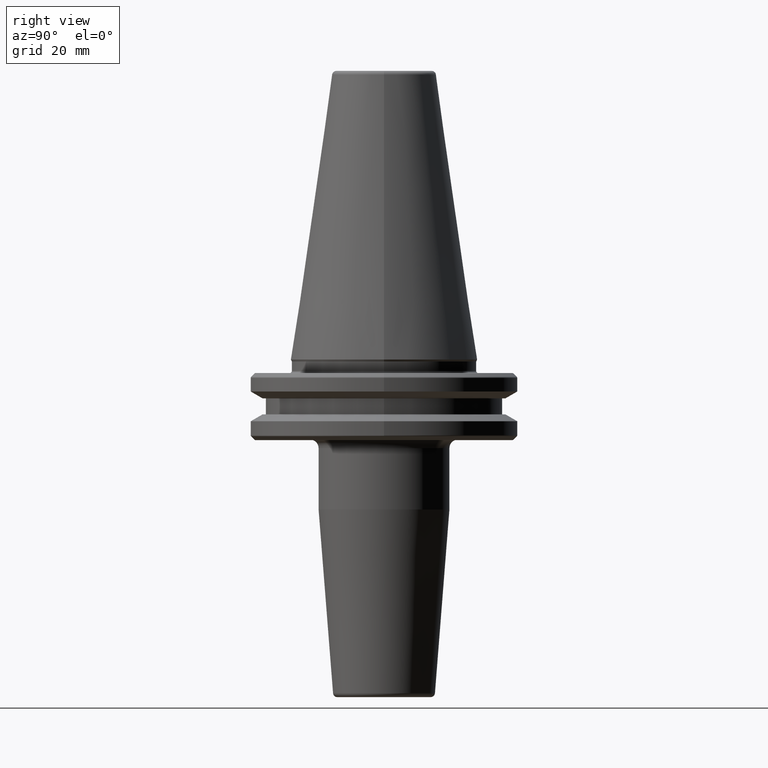
[diagram: clean part render]
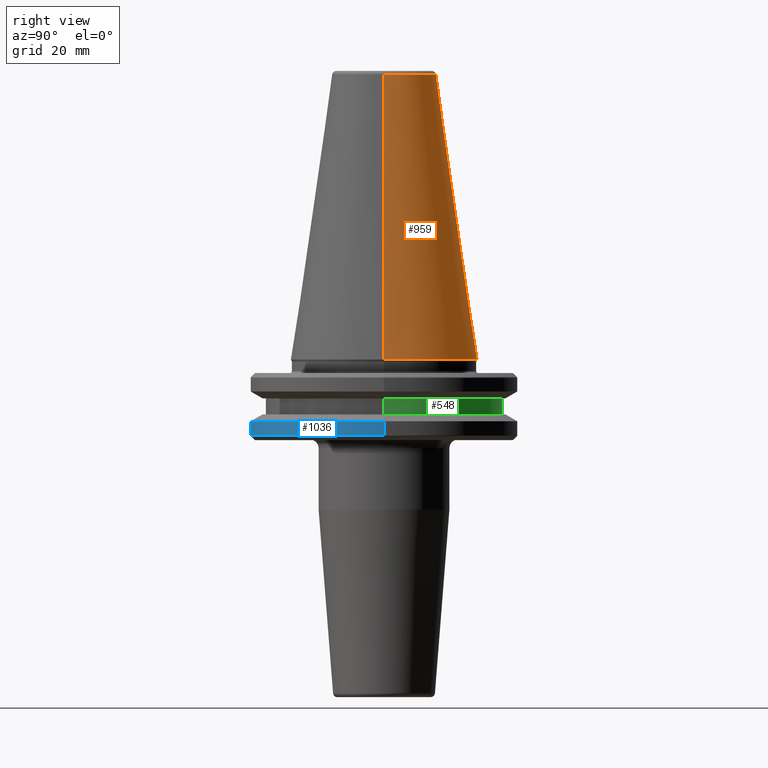
[diagram: same view with three faces highlighted in distinct colors, each labeled with its STEP entity id]
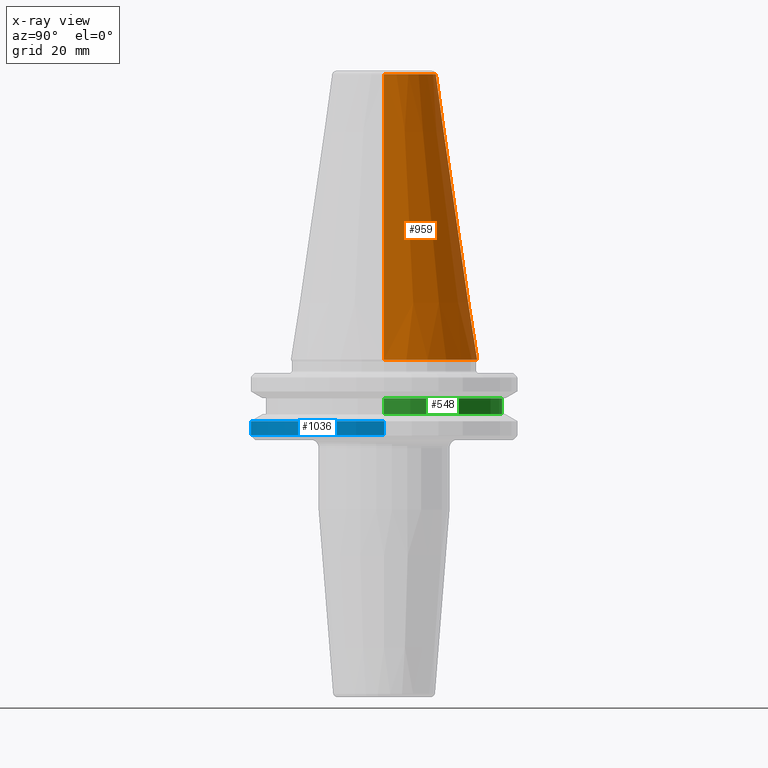
[diagram: x-ray of the same camera — body ghosted, the three highlighted faces saturated]
A machine part, right view with three faces highlighted in distinct colors.
The next image is the same camera in x-ray (body ghosted, the three faces saturated) — at least one of them is partly hidden behind the body in this view.
Their STEP definitions:

[orange] entity #959 — the highlighted conical surface has half-angle 8.297 deg.
#44 = CARTESIAN_POINT ( 'NONE',  ( 0.0000000000000000000, 0.0000000000000000000, 67.54430822726729400 ) ) ;
#144 = DIRECTION ( 'NONE',  ( 1.000000000000000000, 0.0000000000000000000, 0.0000000000000000000 ) ) ;
#147 = DIRECTION ( 'NONE',  ( -0.0000000000000000000, -0.0000000000000000000, 1.000000000000000000 ) ) ;
#156 = ORIENTED_EDGE ( 'NONE', *, *, #756, .T. ) ;
#178 = FACE_OUTER_BOUND ( 'NONE', #567, .T. ) ;
#188 = AXIS2_PLACEMENT_3D ( 'NONE', #1124, #147, #610 ) ;
#273 = VERTEX_POINT ( 'NONE', #507 ) ;
#288 = DIRECTION ( 'NONE',  ( 0.0000000000000000000, 0.0000000000000000000, -1.000000000000000000 ) ) ;
#397 = CARTESIAN_POINT ( 'NONE',  ( 0.0000000000000000000, 0.0000000000000000000, 67.54430822726729400 ) ) ;
#427 = CIRCLE ( 'NONE', #188, 22.22500000000000500 ) ;
#446 = AXIS2_PLACEMENT_3D ( 'NONE', #397, #288, #495 ) ;
#464 = LINE ( 'NONE', #1246, #1199 ) ;
#495 = DIRECTION ( 'NONE',  ( -1.000000000000000000, 0.0000000000000000000, 0.0000000000000000000 ) ) ;
#501 = AXIS2_PLACEMENT_3D ( 'NONE', #44, #732, #144 ) ;
#507 = CARTESIAN_POINT ( 'NONE',  ( -22.22500000000000500, 2.721777511104993200E-015, 0.0000000000000000000 ) ) ;
#543 = CONICAL_SURFACE ( 'NONE', #446, 12.37469537611110800, 0.1448138465474191100 ) ;
#567 = EDGE_LOOP ( 'NONE', ( #826, #1031, #156, #914 ) ) ;
#586 = VECTOR ( 'NONE', #1049, 1000.000000000000000 ) ;
#610 = DIRECTION ( 'NONE',  ( 1.000000000000000000, 0.0000000000000000000, 0.0000000000000000000 ) ) ;
#671 = CARTESIAN_POINT ( 'NONE',  ( 22.22500000000000500, 0.0000000000000000000, 0.0000000000000000000 ) ) ;
#672 = CARTESIAN_POINT ( 'NONE',  ( -12.37469537611110800, 0.0000000000000000000, 67.54430822726729400 ) ) ;
#708 = EDGE_CURVE ( 'NONE', #1232, #818, #464, .T. ) ;
#732 = DIRECTION ( 'NONE',  ( -0.0000000000000000000, -0.0000000000000000000, 1.000000000000000000 ) ) ;
#756 = EDGE_CURVE ( 'NONE', #818, #273, #427, .T. ) ;
#783 = CARTESIAN_POINT ( 'NONE',  ( 12.37469537611110800, 2.118620309691397700E-015, 67.54430822726729400 ) ) ;
#788 = EDGE_CURVE ( 'NONE', #1139, #273, #1101, .T. ) ;
#818 = VERTEX_POINT ( 'NONE', #671 ) ;
#826 = ORIENTED_EDGE ( 'NONE', *, *, #1053, .F. ) ;
#914 = ORIENTED_EDGE ( 'NONE', *, *, #788, .F. ) ;
#959 = ADVANCED_FACE ( 'NONE', ( #178 ), #543, .T. ) ;
#1031 = ORIENTED_EDGE ( 'NONE', *, *, #708, .T. ) ;
#1044 = DIRECTION ( 'NONE',  ( 0.1443082272673071000, 1.767266086135364600E-017, -0.9895327864921743500 ) ) ;
#1049 = DIRECTION ( 'NONE',  ( -0.1443082272673071000, 0.0000000000000000000, -0.9895327864921743500 ) ) ;
#1053 = EDGE_CURVE ( 'NONE', #1232, #1139, #1255, .T. ) ;
#1101 = LINE ( 'NONE', #1155, #586 ) ;
#1124 = CARTESIAN_POINT ( 'NONE',  ( 0.0000000000000000000, 0.0000000000000000000, 0.0000000000000000000 ) ) ;
#1139 = VERTEX_POINT ( 'NONE', #672 ) ;
#1155 = CARTESIAN_POINT ( 'NONE',  ( -12.37469537611110800, 0.0000000000000000000, 67.54430822726729400 ) ) ;
#1199 = VECTOR ( 'NONE', #1044, 1000.000000000000000 ) ;
#1232 = VERTEX_POINT ( 'NONE', #783 ) ;
#1246 = CARTESIAN_POINT ( 'NONE',  ( 12.37469537611110800, 1.515463108277802100E-015, 67.54430822726729400 ) ) ;
#1255 = CIRCLE ( 'NONE', #501, 12.37469537611110800 ) ;

[blue] entity #1036 — the highlighted cylindrical surface (partial cylindrical patch) has radius 31.75 mm, axis along (-0, -0, 1).
#15 = AXIS2_PLACEMENT_3D ( 'NONE', #760, #185, #862 ) ;
#25 = DIRECTION ( 'NONE',  ( 1.000000000000000000, 0.0000000000000000000, 0.0000000000000000000 ) ) ;
#31 = CIRCLE ( 'NONE', #15, 31.75000000000000000 ) ;
#35 = ORIENTED_EDGE ( 'NONE', *, *, #745, .T. ) ;
#185 = DIRECTION ( 'NONE',  ( -0.0000000000000000000, -0.0000000000000000000, 1.000000000000000000 ) ) ;
#213 = DIRECTION ( 'NONE',  ( 1.000000000000000000, 0.0000000000000000000, 0.0000000000000000000 ) ) ;
#269 = AXIS2_PLACEMENT_3D ( 'NONE', #613, #713, #213 ) ;
#280 = CARTESIAN_POINT ( 'NONE',  ( 31.75000000000000000, 0.0000000000000000000, 113.5216080541959500 ) ) ;
#389 = CIRCLE ( 'NONE', #269, 31.75000000000000000 ) ;
#390 = VECTOR ( 'NONE', #677, 1000.000000000000000 ) ;
#428 = LINE ( 'NONE', #280, #390 ) ;
#468 = VERTEX_POINT ( 'NONE', #1214 ) ;
#515 = LINE ( 'NONE', #822, #712 ) ;
#523 = DIRECTION ( 'NONE',  ( -0.0000000000000000000, -0.0000000000000000000, 1.000000000000000000 ) ) ;
#613 = CARTESIAN_POINT ( 'NONE',  ( 0.0000000000000000000, 0.0000000000000000000, -17.93431457505076300 ) ) ;
#677 = DIRECTION ( 'NONE',  ( -0.0000000000000000000, -0.0000000000000000000, 1.000000000000000000 ) ) ;
#698 = ORIENTED_EDGE ( 'NONE', *, *, #1159, .T. ) ;
#712 = VECTOR ( 'NONE', #1221, 1000.000000000000000 ) ;
#713 = DIRECTION ( 'NONE',  ( -0.0000000000000000000, -0.0000000000000000000, 1.000000000000000000 ) ) ;
#745 = EDGE_CURVE ( 'NONE', #754, #898, #389, .T. ) ;
#754 = VERTEX_POINT ( 'NONE', #1072 ) ;
#760 = CARTESIAN_POINT ( 'NONE',  ( 0.0000000000000000000, 0.0000000000000000000, -14.62183664205671200 ) ) ;
#764 = FACE_OUTER_BOUND ( 'NONE', #976, .T. ) ;
#800 = VERTEX_POINT ( 'NONE', #1074 ) ;
#814 = CARTESIAN_POINT ( 'NONE',  ( 0.0000000000000000000, 0.0000000000000000000, 113.5216080541959500 ) ) ;
#822 = CARTESIAN_POINT ( 'NONE',  ( -31.75000000000000000, 3.888253587292846500E-015, 113.5216080541959500 ) ) ;
#836 = EDGE_CURVE ( 'NONE', #800, #468, #31, .T. ) ;
#862 = DIRECTION ( 'NONE',  ( 1.000000000000000000, 0.0000000000000000000, 0.0000000000000000000 ) ) ;
#885 = AXIS2_PLACEMENT_3D ( 'NONE', #814, #523, #25 ) ;
#898 = VERTEX_POINT ( 'NONE', #1252 ) ;
#971 = ORIENTED_EDGE ( 'NONE', *, *, #836, .F. ) ;
#976 = EDGE_LOOP ( 'NONE', ( #1144, #35, #698, #971 ) ) ;
#1013 = CYLINDRICAL_SURFACE ( 'NONE', #885, 31.75000000000000000 ) ;
#1036 = ADVANCED_FACE ( 'NONE', ( #764 ), #1013, .T. ) ;
#1072 = CARTESIAN_POINT ( 'NONE',  ( -31.75000000000000000, 3.888253587292846500E-015, -17.93431457505076300 ) ) ;
#1074 = CARTESIAN_POINT ( 'NONE',  ( -31.75000000000000000, 3.888253587292846500E-015, -14.62183664205671200 ) ) ;
#1093 = EDGE_CURVE ( 'NONE', #754, #800, #515, .T. ) ;
#1144 = ORIENTED_EDGE ( 'NONE', *, *, #1093, .F. ) ;
#1159 = EDGE_CURVE ( 'NONE', #898, #468, #428, .T. ) ;
#1214 = CARTESIAN_POINT ( 'NONE',  ( 31.75000000000000000, 0.0000000000000000000, -14.62183664205671200 ) ) ;
#1221 = DIRECTION ( 'NONE',  ( -0.0000000000000000000, -0.0000000000000000000, 1.000000000000000000 ) ) ;
#1252 = CARTESIAN_POINT ( 'NONE',  ( 31.75000000000000000, 0.0000000000000000000, -17.93431457505076300 ) ) ;

[green] entity #548 — the highlighted cylindrical surface (partial cylindrical patch) has radius 28 mm, axis along (-0, -0, 1).
#19 = DIRECTION ( 'NONE',  ( 1.000000000000000000, 0.0000000000000000000, 0.0000000000000000000 ) ) ;
#73 = ORIENTED_EDGE ( 'NONE', *, *, #381, .F. ) ;
#111 = CARTESIAN_POINT ( 'NONE',  ( 28.00000000000000000, 0.0000000000000000000, 113.5216080541959500 ) ) ;
#138 = CIRCLE ( 'NONE', #1006, 28.00000000000000000 ) ;
#207 = DIRECTION ( 'NONE',  ( -0.0000000000000000000, -0.0000000000000000000, 1.000000000000000000 ) ) ;
#224 = CIRCLE ( 'NONE', #565, 28.00000000000000000 ) ;
#274 = VERTEX_POINT ( 'NONE', #1194 ) ;
#368 = VERTEX_POINT ( 'NONE', #1092 ) ;
#375 = EDGE_CURVE ( 'NONE', #1162, #274, #928, .T. ) ;
#381 = EDGE_CURVE ( 'NONE', #949, #274, #138, .T. ) ;
#450 = CARTESIAN_POINT ( 'NONE',  ( 0.0000000000000000000, 0.0000000000000000000, -13.00000000000001100 ) ) ;
#463 = ORIENTED_EDGE ( 'NONE', *, *, #494, .F. ) ;
#494 = EDGE_CURVE ( 'NONE', #368, #949, #623, .T. ) ;
#508 = DIRECTION ( 'NONE',  ( -0.0000000000000000000, -0.0000000000000000000, 1.000000000000000000 ) ) ;
#533 = DIRECTION ( 'NONE',  ( 1.000000000000000000, 0.0000000000000000000, 0.0000000000000000000 ) ) ;
#548 = ADVANCED_FACE ( 'NONE', ( #810 ), #573, .T. ) ;
#565 = AXIS2_PLACEMENT_3D ( 'NONE', #450, #1118, #533 ) ;
#573 = CYLINDRICAL_SURFACE ( 'NONE', #716, 28.00000000000000000 ) ;
#585 = CARTESIAN_POINT ( 'NONE',  ( 28.00000000000000000, 0.0000000000000000000, -9.199999999999999300 ) ) ;
#623 = LINE ( 'NONE', #111, #844 ) ;
#689 = DIRECTION ( 'NONE',  ( -0.0000000000000000000, -0.0000000000000000000, 1.000000000000000000 ) ) ;
#691 = VECTOR ( 'NONE', #207, 1000.000000000000000 ) ;
#716 = AXIS2_PLACEMENT_3D ( 'NONE', #1184, #689, #1178 ) ;
#810 = FACE_OUTER_BOUND ( 'NONE', #1203, .T. ) ;
#844 = VECTOR ( 'NONE', #508, 1000.000000000000000 ) ;
#872 = CARTESIAN_POINT ( 'NONE',  ( -28.00000000000000000, 3.429011037612589300E-015, -13.00000000000001100 ) ) ;
#928 = LINE ( 'NONE', #1001, #691 ) ;
#949 = VERTEX_POINT ( 'NONE', #585 ) ;
#961 = ORIENTED_EDGE ( 'NONE', *, *, #1046, .T. ) ;
#1001 = CARTESIAN_POINT ( 'NONE',  ( -28.00000000000000000, 3.429011037612589300E-015, 113.5216080541959500 ) ) ;
#1006 = AXIS2_PLACEMENT_3D ( 'NONE', #1187, #1193, #19 ) ;
#1046 = EDGE_CURVE ( 'NONE', #368, #1162, #224, .T. ) ;
#1092 = CARTESIAN_POINT ( 'NONE',  ( 28.00000000000000000, 0.0000000000000000000, -13.00000000000001100 ) ) ;
#1107 = ORIENTED_EDGE ( 'NONE', *, *, #375, .T. ) ;
#1118 = DIRECTION ( 'NONE',  ( -0.0000000000000000000, -0.0000000000000000000, 1.000000000000000000 ) ) ;
#1162 = VERTEX_POINT ( 'NONE', #872 ) ;
#1178 = DIRECTION ( 'NONE',  ( 1.000000000000000000, 0.0000000000000000000, 0.0000000000000000000 ) ) ;
#1184 = CARTESIAN_POINT ( 'NONE',  ( 0.0000000000000000000, 0.0000000000000000000, 113.5216080541959500 ) ) ;
#1187 = CARTESIAN_POINT ( 'NONE',  ( 0.0000000000000000000, 0.0000000000000000000, -9.199999999999999300 ) ) ;
#1193 = DIRECTION ( 'NONE',  ( -0.0000000000000000000, -0.0000000000000000000, 1.000000000000000000 ) ) ;
#1194 = CARTESIAN_POINT ( 'NONE',  ( -28.00000000000000000, 3.429011037612589300E-015, -9.199999999999999300 ) ) ;
#1203 = EDGE_LOOP ( 'NONE', ( #961, #1107, #73, #463 ) ) ;